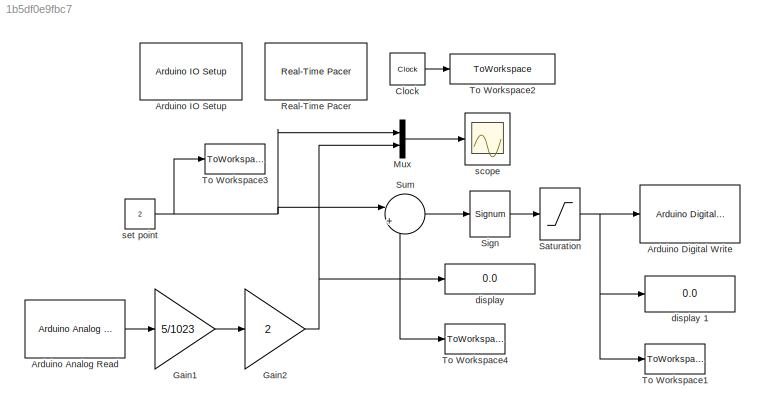
MODEL slx_1b5df0e9fbc7
KIND model
BLOCK [Reference] Arduino Analog Read  REF=arduino_io_lib/Arduino Analog Read
  Ports = [0, 1]
  SourceBlock = arduino_io_lib/Arduino Analog Read
  SourceType = Arduino IO Analog Read
  T = 0.1
  arduinoPin = 0
  arduinoVar = Temporary arduino variable: Arduino1
BLOCK [Reference] Arduino Digital Write  REF=arduino_io_lib/Arduino Digital Write
  Ports = [1]
  SourceBlock = arduino_io_lib/Arduino Digital Write
  SourceType = Arduino IO digital Write
  T = 0.1
  arduinoPin = 3
  arduinoVar = Temporary arduino variable: Arduino1
BLOCK [Reference] Arduino IO Setup  REF=arduino_io_lib/Arduino IO Setup
  Ports = []
  Priority = 3
  SourceBlock = arduino_io_lib/Arduino IO Setup
  SourceType = Arduino IO Setup
  arduinoVar = Temporary arduino variable: Arduino1
  comPort = COM6
  workspaceVarName = a
BLOCK [Clock] Clock
BLOCK [Gain] Gain1
  Gain = 5/1023
  OutDataTypeStr = Inherit: Inherit via internal rule
  ParamDataTypeStr = Inherit: Inherit via internal rule
  SaturateOnIntegerOverflow = off
BLOCK [Gain] Gain2
  Gain = 2
  OutDataTypeStr = Inherit: Inherit via internal rule
  ParamDataTypeStr = Inherit: Inherit via internal rule
  SaturateOnIntegerOverflow = off
BLOCK [Mux] Mux
  DisplayOption = bar
  Inputs = 2
  Ports = [2, 1]
BLOCK [Reference] Real-Time Pacer  REF=arduino_io_lib/Real-Time Pacer
  Ports = []
  SourceBlock = arduino_io_lib/Real-Time Pacer
  SourceType = RealTime_Pacer
  simTimePerRealTime = 1
BLOCK [Saturate] Saturation
  InputPortMap = u0
  LowerLimit = 0
  Ports = [1, 1]
  UpperLimit = 1
BLOCK [Signum] Sign
BLOCK [Sum] Sum
  IconShape = round
  InputSameDT = off
  Inputs = |+-
  OutDataTypeStr = Inherit: Inherit via internal rule
  Ports = [2, 1]
  SaturateOnIntegerOverflow = off
BLOCK [ToWorkspace] To Workspace1
  FixptAsFi = on
  MaxDataPoints = inf
  Ports = [1]
  SampleTime = -1
  Save2DSignal = 3-D array (concatenate along third dimension)
  VariableName = Vo
BLOCK [ToWorkspace] To Workspace2
  FixptAsFi = on
  MaxDataPoints = inf
  Ports = [1]
  SampleTime = -1
  Save2DSignal = 3-D array (concatenate along third dimension)
  VariableName = T
BLOCK [ToWorkspace] To Workspace3
  FixptAsFi = on
  MaxDataPoints = inf
  Ports = [1]
  SampleTime = -1
  Save2DSignal = 3-D array (concatenate along third dimension)
  VariableName = SP
BLOCK [ToWorkspace] To Workspace4
  FixptAsFi = on
  MaxDataPoints = inf
  Ports = [1]
  SampleTime = -1
  Save2DSignal = 3-D array (concatenate along third dimension)
  VariableName = VG
BLOCK [Display] display 
  Decimation = 1
  Ports = [1]
BLOCK [Display] display 1
  Decimation = 1
  Ports = [1]
BLOCK [Scope] scope
  DataFormat = StructureWithTime
  Floating = off
  LimitDataPoints = off
  NumInputPorts = 1
  Ports = [1]
  SampleTime = 0
  SaveName = ScopeData1
  ShowLegends = off
  YMax = 12
  YMin = -1
BLOCK [Constant] set point
  Value = 2
LINE Arduino Analog Read:1 -> Gain1:1
LINE Clock:1 -> To Workspace2:1
LINE Gain1:1 -> Gain2:1
NET Gain2:1 -> Mux:2, Sum:2, To Workspace4:1, display :1
LINE Mux:1 -> scope:1
NET Saturation:1 -> Arduino Digital Write:1, To Workspace1:1, display 1:1
LINE Sign:1 -> Saturation:1
LINE Sum:1 -> Sign:1
NET set point:1 -> Mux:1, Sum:1, To Workspace3:1
note: NET lines group one-source signal fan-out (src -> all destinations, sorted); 1:1 wires keep LINE
